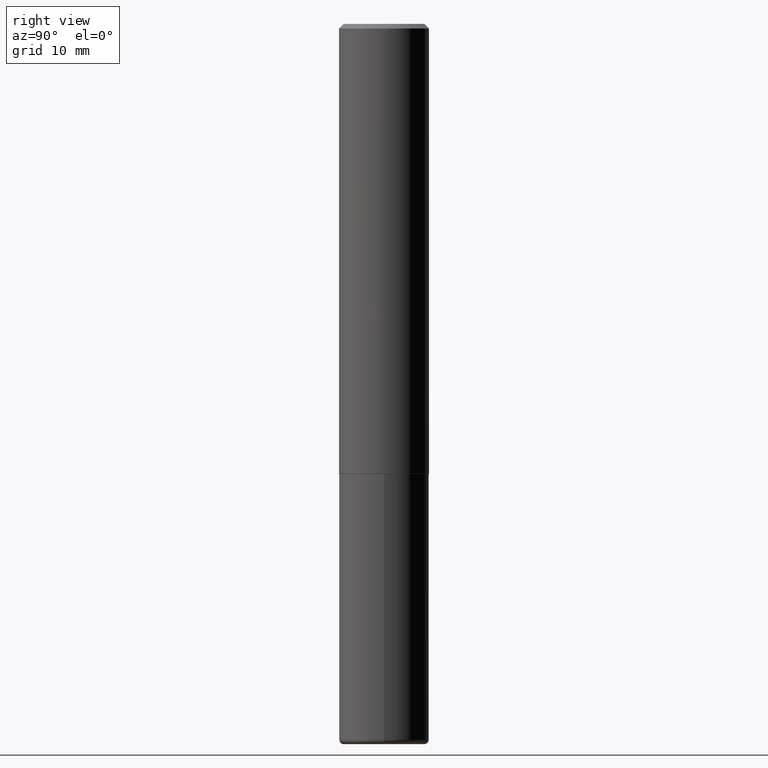
[diagram: clean part render]
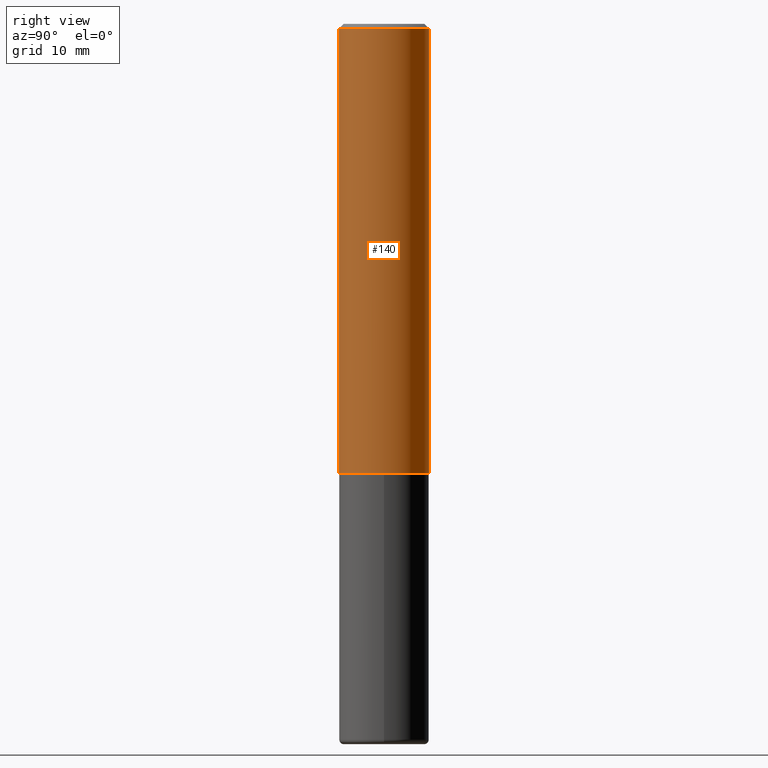
[diagram: same view with one face highlighted and labeled with its STEP entity id]
A machine part, right view. The second image highlights one B-rep face of the part: STEP entity #140.
In plain terms, the highlighted cylindrical surface (partial cylindrical patch) has radius 5 mm, axis along (-0, 0, 1).
Its self-contained STEP definition (entity closure, byte-faithful):
#4 = EDGE_CURVE ( 'NONE', #362, #344, #64, .T. ) ;
#5 = DIRECTION ( 'NONE',  ( -6.982962677686265922E-15, -1.000000000000000000, 3.491767699944464545E-15 ) ) ;
#21 = CARTESIAN_POINT ( 'NONE',  ( -1.350489030861325626E-15, -0.1968500000000001082, -0.01999999999999935510 ) ) ;
#26 = AXIS2_PLACEMENT_3D ( 'NONE', #97, #158, #322 ) ;
#33 = CIRCLE ( 'NONE', #313, 0.1968500000000002470 ) ;
#38 = EDGE_CURVE ( 'NONE', #344, #61, #288, .T. ) ;
#60 = DIRECTION ( 'NONE',  ( -2.445268841296851437E-29, 3.491767699944464545E-15, 1.000000000000000000 ) ) ;
#61 = VERTEX_POINT ( 'NONE', #65 ) ;
#64 = LINE ( 'NONE', #135, #269 ) ;
#65 = CARTESIAN_POINT ( 'NONE',  ( 1.374596203102542200E-15, 0.1968499999999999694, -0.02000000000000072900 ) ) ;
#75 = EDGE_CURVE ( 'NONE', #362, #377, #33, .T. ) ;
#76 = CYLINDRICAL_SURFACE ( 'NONE', #223, 0.1968500000000001360 ) ;
#77 = DIRECTION ( 'NONE',  ( -2.445268841296851437E-29, 3.491767699944464545E-15, 1.000000000000000000 ) ) ;
#81 = LINE ( 'NONE', #315, #82 ) ;
#82 = VECTOR ( 'NONE', #182, 39.37007874015748143 ) ;
#84 = ORIENTED_EDGE ( 'NONE', *, *, #38, .F. ) ;
#97 = CARTESIAN_POINT ( 'NONE',  ( 4.890537682593712927E-31, -6.983535399888942699E-17, -0.02000000000000004205 ) ) ;
#112 = CARTESIAN_POINT ( 'NONE',  ( 1.398703375343782440E-15, 0.1968499999999933914, -1.967500000000000471 ) ) ;
#117 = CARTESIAN_POINT ( 'NONE',  ( -1.374596203102495065E-15, -0.1968500000000071026, -1.967499999999998916 ) ) ;
#135 = CARTESIAN_POINT ( 'NONE',  ( -1.374596203102542397E-15, -0.1968500000000001360, 6.873544717340683232E-16 ) ) ;
#140 = ADVANCED_FACE ( 'NONE', ( #239 ), #76, .T. ) ;
#158 = DIRECTION ( 'NONE',  ( -2.445268841296851437E-29, 3.491767699944464545E-15, 1.000000000000000000 ) ) ;
#164 = DIRECTION ( 'NONE',  ( -2.445268841296851437E-29, 3.491767699944464940E-15, 1.000000000000000000 ) ) ;
#182 = DIRECTION ( 'NONE',  ( -2.445268841296851437E-29, 3.491767699944464940E-15, 1.000000000000000000 ) ) ;
#190 = ORIENTED_EDGE ( 'NONE', *, *, #75, .T. ) ;
#223 = AXIS2_PLACEMENT_3D ( 'NONE', #295, #77, #5 ) ;
#239 = FACE_OUTER_BOUND ( 'NONE', #346, .T. ) ;
#269 = VECTOR ( 'NONE', #164, 39.37007874015748143 ) ;
#283 = ORIENTED_EDGE ( 'NONE', *, *, #302, .T. ) ;
#288 = CIRCLE ( 'NONE', #26, 0.1968500000000000527 ) ;
#295 = CARTESIAN_POINT ( 'NONE',  ( 0.000000000000000000, 0.000000000000000000, 0.000000000000000000 ) ) ;
#302 = EDGE_CURVE ( 'NONE', #377, #61, #81, .T. ) ;
#311 = DIRECTION ( 'NONE',  ( -6.982962677686265922E-15, -1.000000000000000000, 4.163344669033670112E-15 ) ) ;
#313 = AXIS2_PLACEMENT_3D ( 'NONE', #345, #60, #311 ) ;
#315 = CARTESIAN_POINT ( 'NONE',  ( 1.398703375343757985E-15, 0.1968500000000001360, -6.873544717340683232E-16 ) ) ;
#322 = DIRECTION ( 'NONE',  ( -6.982962677686265133E-15, -1.000000000000000000, 3.491137977679279029E-15 ) ) ;
#337 = ORIENTED_EDGE ( 'NONE', *, *, #4, .F. ) ;
#344 = VERTEX_POINT ( 'NONE', #21 ) ;
#345 = CARTESIAN_POINT ( 'NONE',  ( 4.811066445251554069E-29, -6.870052949640732965E-15, -1.967499999999999805 ) ) ;
#346 = EDGE_LOOP ( 'NONE', ( #190, #283, #84, #337 ) ) ;
#362 = VERTEX_POINT ( 'NONE', #117 ) ;
#377 = VERTEX_POINT ( 'NONE', #112 ) ;